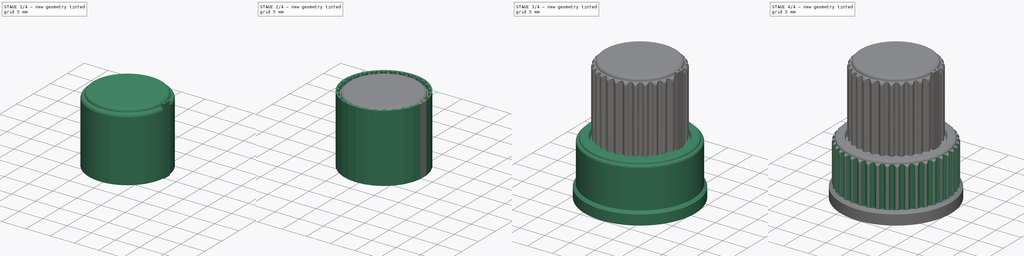
[diagram: build sequence overview — one tinted view per stage of 4, left to right]
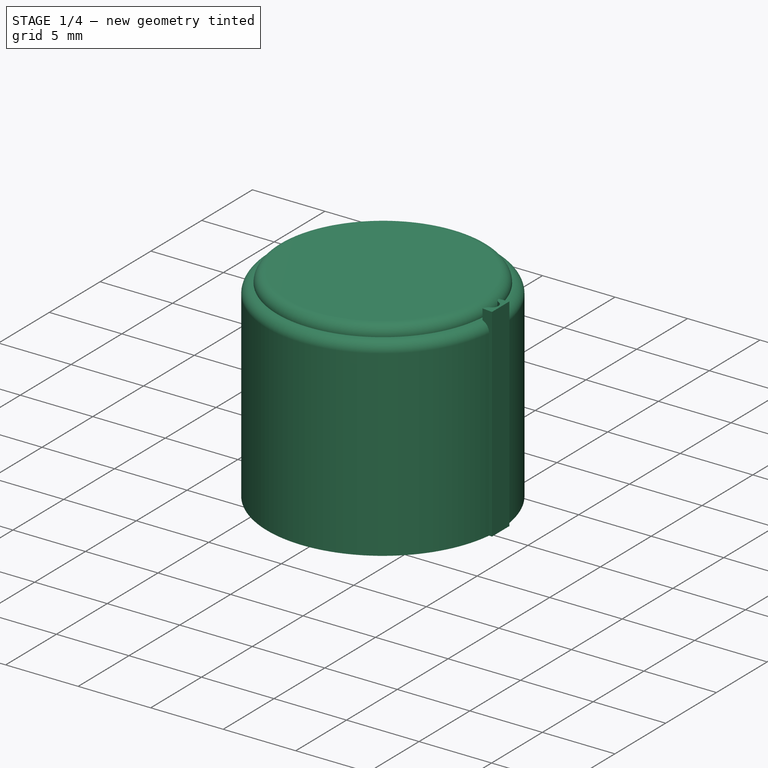
[diagram: stage 1 of 4 — iso view after this stage's code; geometry added in this stage tinted green]
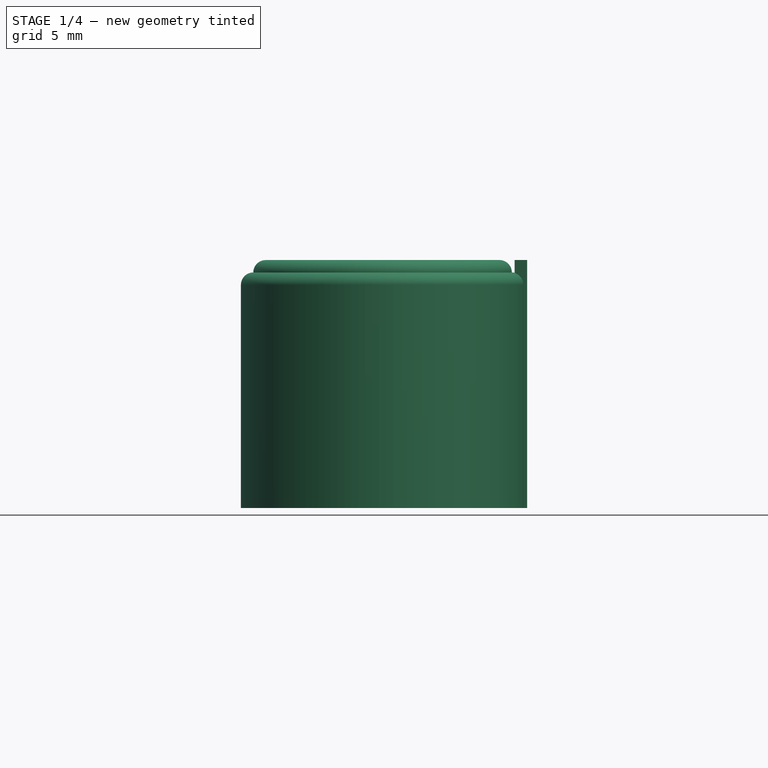
[diagram: stage 1 of 4 — front view after this stage's code; geometry added in this stage tinted green]
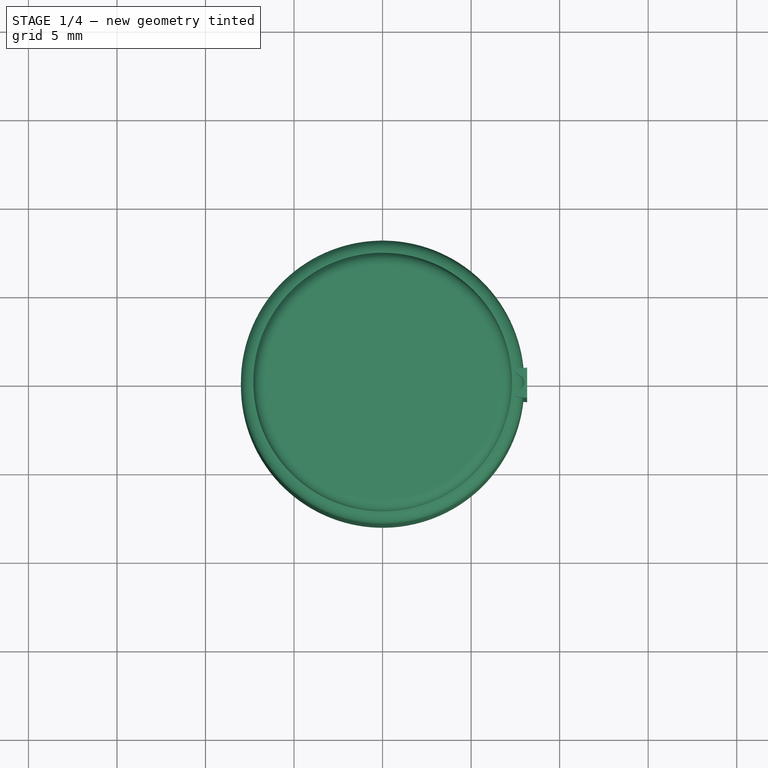
[diagram: stage 1 of 4 — top view after this stage's code; geometry added in this stage tinted green]
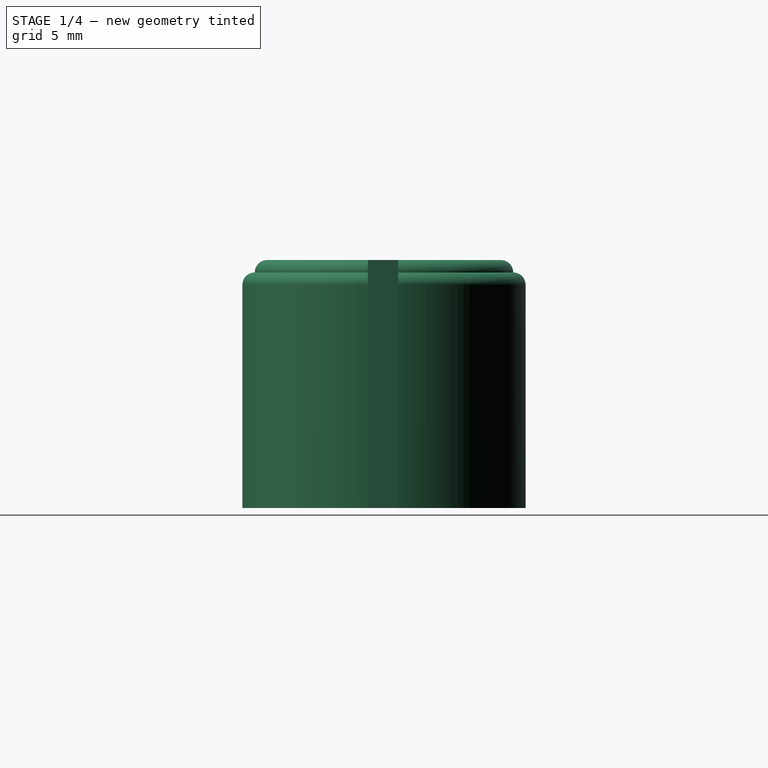
[diagram: stage 1 of 4 — right view after this stage's code; geometry added in this stage tinted green]
FCSTD DOCUMENT  (FreeCAD 0.16R6706 (Git))
Label: knob
License: All rights reserved
LicenseURL: http://en.wikipedia.org/wiki/All_rights_reserved
objects: Sketcher::SketchObject×7, PartDesign::Pad×5, PartDesign::Revolution×2, Part::FeaturePython×2, Part::MultiFuse×2, Part::Cut×2
note: 27 computed .brp shape members not serialized (recipe doc carries the construction recipe); baked Part::Feature solids carry a one-line shape summary decoded from their .brp

FEATURE [Sketcher::SketchObject] Sketch001  label="Sketch (inner)"
  Placement = pos=(0,0,0) rot=(1,0,0;1.5708rad)
  expr: Constraints[13] = 3.95 / 2
  sketch-geometry (12):
    g0: LineSegment StartX=1.975 StartY=11 StartZ=0 EndX=8 EndY=11 EndZ=0
    g1: LineSegment StartX=8 StartY=11 StartZ=0 EndX=8 EndY=23.6 EndZ=0
    g2: LineSegment StartX=6.6 StartY=25 StartZ=0 EndX=0 EndY=25 EndZ=0
    g3: LineSegment StartX=0 StartY=25 StartZ=0 EndX=0 EndY=16.5 EndZ=0
    g4: LineSegment StartX=0 StartY=16.5 StartZ=0 EndX=1.975 EndY=16.5 EndZ=0
    g5: LineSegment StartX=1.975 StartY=16.5 StartZ=0 EndX=1.975 EndY=11 EndZ=0
    g6: ArcOfCircle CenterX=6.6 CenterY=24.3 CenterZ=0 NormalX=0 NormalY=0 NormalZ=1 Radius=0.7 StartAngle=0 EndAngle=1.5708
    g7: LineSegment [constr] StartX=7.3 StartY=24.3 StartZ=0 EndX=6.6 EndY=24.3 EndZ=0
    g8: LineSegment [constr] StartX=6.6 StartY=25 StartZ=0 EndX=6.6 EndY=24.3 EndZ=0
    g9: ArcOfCircle CenterX=7.3 CenterY=23.6 CenterZ=0 NormalX=0 NormalY=0 NormalZ=1 Radius=0.7 StartAngle=0 EndAngle=1.5708
    g10: LineSegment [constr] StartX=7.3 StartY=24.3 StartZ=0 EndX=7.3 EndY=23.6 EndZ=0
    g11: LineSegment [constr] StartX=7.3 StartY=23.6 StartZ=0 EndX=8.00035 EndY=23.6 EndZ=0
  constraints (33):
    c: Horizontal(g0)
    c: Coincident(g1,g0)
    c: Horizontal(g2)
    c: Coincident(g3,g2)
    c: Vertical(g3)
    c: Coincident(g4,g3)
    c: Coincident(g5,g4)
    c: Coincident(g5,g0)
    c: Horizontal(g4)
    c: Vertical(g5)
    c: DistanceY(g-1,g0) = 11
    c: PointOnObject(g3,g-2)
    c: DistanceX(g-1,g0) = 8
    c: DistanceX(g-1,g0) = 1.975
    c: DistanceY(g5,g5) = 5.5
    c: Vertical(g1)
    c: DistanceY(g0,g2) = 14
    c: Coincident(g6,g2)
    c: Coincident(g7,g6)
    c: Coincident(g7,g6)
    c: Coincident(g8,g2)
    c: Coincident(g8,g6)
    c: Vertical(g8)
    c: Tangent(g1,g9) = -1.5708
    c: Coincident(g9,g6)
    c: Equal(g6,g9)
    c: Horizontal(g7)
    c: Coincident(g10,g6)
    c: Coincident(g10,g9)
    c: Vertical(g10)
    c: Coincident(g11,g9)
    c: Horizontal(g11)
    c: Radius(g9) = 0.7
FEATURE [PartDesign::Revolution] Revolution001  label="Revolution (inner)"
  Angle = 360
  Axis = (0,0,1)
  Base = (0,0,0)
  Placement = pos=(0,0,0) rot=(1,0,0;1.5708rad)
  ReferenceAxis = -> Sketch001 [V_Axis]
  Reversed = true
  Sketch = -> Sketch001
FEATURE [Sketcher::SketchObject] Sketch005  label="Sketch (inner notch)"
  Placement = pos=(0,0,0) rot=(1,0,0;1.5708rad)
  sketch-geometry (4):
    g0: LineSegment StartX=0.9 StartY=16.5 StartZ=0 EndX=2.9 EndY=16.5 EndZ=0
    g1: LineSegment StartX=2.9 StartY=16.5 StartZ=0 EndX=2.9 EndY=11 EndZ=0
    g2: LineSegment StartX=2.9 StartY=11 StartZ=0 EndX=0.9 EndY=11 EndZ=0
    g3: LineSegment StartX=0.9 StartY=11 StartZ=0 EndX=0.9 EndY=16.5 EndZ=0
  constraints (12):
    c: Coincident(g0,g1)
    c: Coincident(g1,g2)
    c: Coincident(g2,g3)
    c: Coincident(g3,g0)
    c: Horizontal(g0)
    c: Horizontal(g2)
    c: Vertical(g1)
    c: Vertical(g3)
    c: DistanceY(g1,g1) = 5.5
    c: DistanceX(g-1,g2) = 0.9
    c: DistanceX(g0,g0) = 2
    c: DistanceY(g-1,g1) = 11
FEATURE [PartDesign::Pad] Pad003  label="Pad (inner notch)"
  Length = 2
  Length2 = 2
  Placement = pos=(0,0,0) rot=(1,0,0;1.5708rad)
  Sketch = -> Sketch005
  Type = 4
FEATURE [Sketcher::SketchObject] Sketch006  label="Sketch (inner grip)001"
  Placement = pos=(0,0,11) rot=(0,0,1;0rad)
  sketch-geometry (9):
    g0: ArcOfCircle CenterX=7.54962 CenterY=-0.0472861 CenterZ=0 NormalX=0 NormalY=0 NormalZ=1 Radius=0.452857 StartAngle=5.11433 EndAngle=7.43952
    g1: ArcOfCircle CenterX=7.91434 CenterY=0.781746 CenterZ=0 NormalX=0 NormalY=0 NormalZ=1 Radius=0.452857 StartAngle=3.24005 EndAngle=4.29794
    g2: ArcOfCircle CenterX=7.90393 CenterY=-0.880822 CenterZ=0 NormalX=0 NormalY=0 NormalZ=1 Radius=0.452857 StartAngle=1.97272 EndAngle=3.03061
    g3: LineSegment [constr] StartX=7.91434 StartY=0.781746 StartZ=0 EndX=0 EndY=0 EndZ=0
    g4: LineSegment [constr] StartX=0 StartY=0 StartZ=0 EndX=7.90393 EndY=-0.880822 EndZ=0
    g5: GeomPoint [constr] X=8 Y=0 Z=0
    g6: LineSegment StartX=7.46368 StartY=0.737231 StartZ=0 EndX=8.16029 EndY=0.806039 EndZ=0
    g7: LineSegment StartX=8.16029 StartY=0.806039 StartZ=0 EndX=8.16029 EndY=-0.90939 EndZ=0
    g8: LineSegment StartX=8.16029 StartY=-0.90939 StartZ=0 EndX=7.45386 EndY=-0.830665 EndZ=0
  constraints (26):
    c: Coincident(g1,g0)
    c: Coincident(g2,g0)
    c: Coincident(g3,g1)
    c: Coincident(g3,g-1)
    c: Coincident(g4,g-1)
    c: Coincident(g4,g2)
    c: Equal(g1,g0)
    c: Equal(g0,g2)
    c: PointOnObject(g1,g3)
    c: PointOnObject(g2,g4)
    c: PointOnObject(g5,g0)
    c: PointOnObject(g5,g-1)
    c: Coincident(g6,g1)
    c: Coincident(g7,g6)
    c: Vertical(g7)
    c: Coincident(g8,g7)
    c: Coincident(g8,g2)
    c: Parallel(g4,g8)
    c: Parallel(g6,g3)
    c: Distance(g6) = 0.7
    c: Tangent(g0,g1)
    c: Tangent(g0,g2)
    c: Angle(g4,g3) = 0.20944
    c: DistanceX(g-1,g5) = 8
    c: Distance(g-1,g1) = 7.5
    c: Distance(g-1,g2) = 7.5
FEATURE [PartDesign::Pad] Pad004  label="Pad (inner grip)001"
  Length = 14
  Length2 = 100
  Placement = pos=(0,0,11) rot=(0,0,1;0rad)
  Sketch = -> Sketch006
  Type = 0
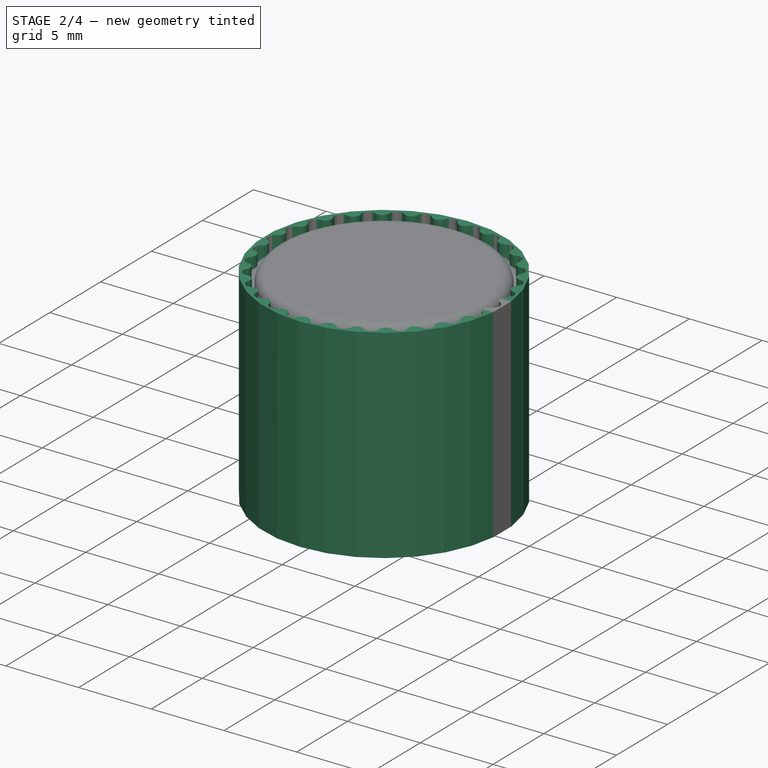
[diagram: stage 2 of 4 — iso view after this stage's code; geometry added in this stage tinted green]
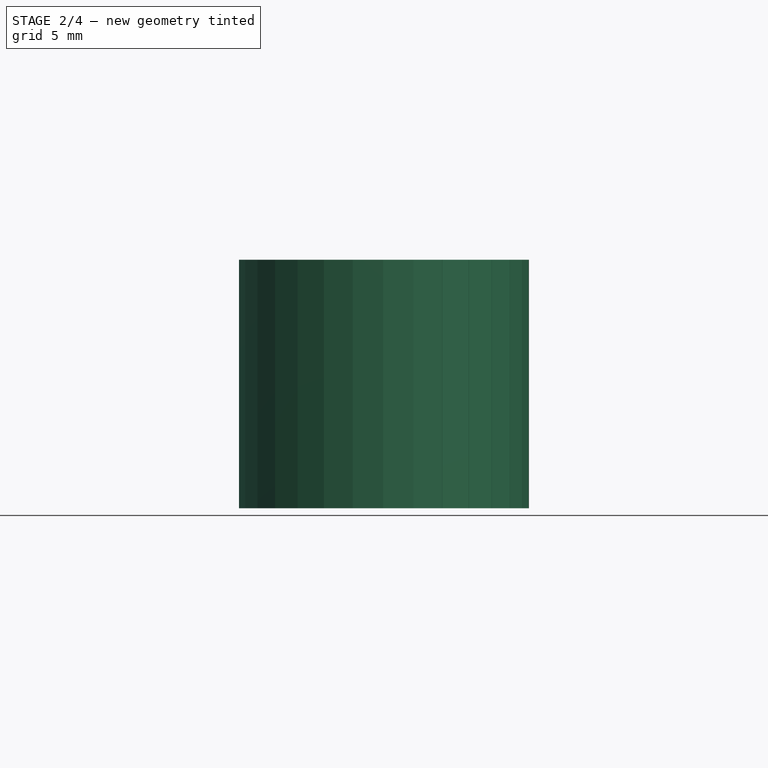
[diagram: stage 2 of 4 — front view after this stage's code; geometry added in this stage tinted green]
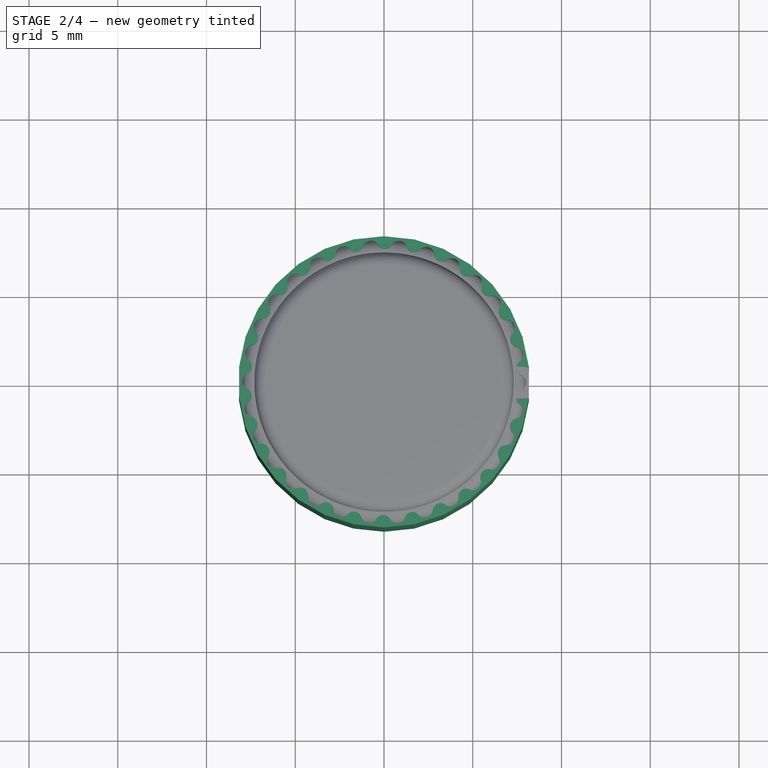
[diagram: stage 2 of 4 — top view after this stage's code; geometry added in this stage tinted green]
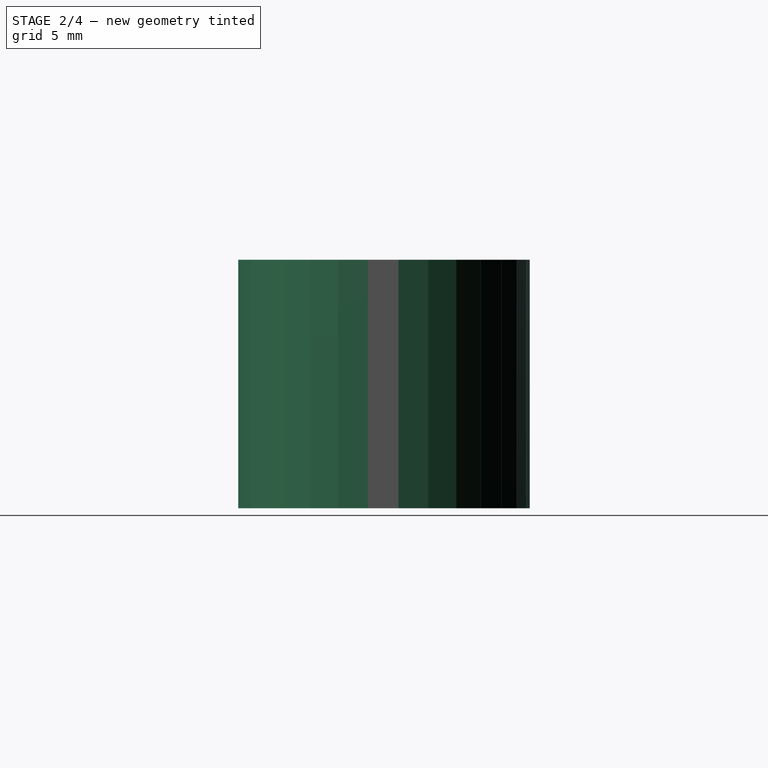
[diagram: stage 2 of 4 — right view after this stage's code; geometry added in this stage tinted green]
FEATURE [Sketcher::SketchObject] Sketch003  label="Sketch (inner grip)"
  Placement = pos=(0,0,11) rot=(0,0,1;0rad)
  sketch-geometry (9):
    g0: ArcOfCircle CenterX=7.54962 CenterY=-0.0472861 CenterZ=0 NormalX=0 NormalY=0 NormalZ=1 Radius=0.452857 StartAngle=5.11433 EndAngle=7.43952
    g1: ArcOfCircle CenterX=7.91434 CenterY=0.781746 CenterZ=0 NormalX=0 NormalY=0 NormalZ=1 Radius=0.452857 StartAngle=3.24005 EndAngle=4.29794
    g2: ArcOfCircle CenterX=7.90393 CenterY=-0.880822 CenterZ=0 NormalX=0 NormalY=0 NormalZ=1 Radius=0.452857 StartAngle=1.97272 EndAngle=3.03061
    g3: LineSegment [constr] StartX=7.91434 StartY=0.781746 StartZ=0 EndX=0 EndY=0 EndZ=0
    g4: LineSegment [constr] StartX=0 StartY=0 StartZ=0 EndX=7.90393 EndY=-0.880822 EndZ=0
    g5: GeomPoint [constr] X=8 Y=0 Z=0
    g6: LineSegment StartX=7.46368 StartY=0.737231 StartZ=0 EndX=8.16029 EndY=0.806039 EndZ=0
    g7: LineSegment StartX=8.16029 StartY=0.806039 StartZ=0 EndX=8.16029 EndY=-0.90939 EndZ=0
    g8: LineSegment StartX=8.16029 StartY=-0.90939 StartZ=0 EndX=7.45386 EndY=-0.830665 EndZ=0
  constraints (26):
    c: Coincident(g1,g0)
    c: Coincident(g2,g0)
    c: Coincident(g3,g1)
    c: Coincident(g3,g-1)
    c: Coincident(g4,g-1)
    c: Coincident(g4,g2)
    c: Equal(g1,g0)
    c: Equal(g0,g2)
    c: PointOnObject(g1,g3)
    c: PointOnObject(g2,g4)
    c: PointOnObject(g5,g0)
    c: PointOnObject(g5,g-1)
    c: Coincident(g6,g1)
    c: Coincident(g7,g6)
    c: Vertical(g7)
    c: Coincident(g8,g7)
    c: Coincident(g8,g2)
    c: Parallel(g4,g8)
    c: Parallel(g6,g3)
    c: Distance(g6) = 0.7
    c: Tangent(g0,g1)
    c: Tangent(g0,g2)
    c: Angle(g4,g3) = 0.20944
    c: DistanceX(g-1,g5) = 8
    c: Distance(g-1,g1) = 7.5
    c: Distance(g-1,g2) = 7.5
FEATURE [PartDesign::Pad] Pad001  label="Pad (inner grip)"
  Length = 14
  Length2 = 100
  Placement = pos=(0,0,11) rot=(0,0,1;0rad)
  Sketch = -> Sketch003
  Type = 0
FEATURE [Part::FeaturePython] Array001  label="Array (inner grip)"  # Draft array (typed FeaturePython)
  Angle = 360
  ArrayType = 1
  Axis = (0,0,1)
  Base = -> Pad001
  Center = (0,0,0)
  Fuse = true
  IntervalAxis = (0,0,0)
  IntervalX = (1,0,0)
  IntervalY = (0,1,0)
  IntervalZ = (0,0,0)
  NumberPolar = 30
  NumberX = 2
  NumberY = 2
  NumberZ = 1
FEATURE [Part::MultiFuse] Fusion001  label="Fusion (inner)"
  Shapes = -> [Revolution001,Pad003]
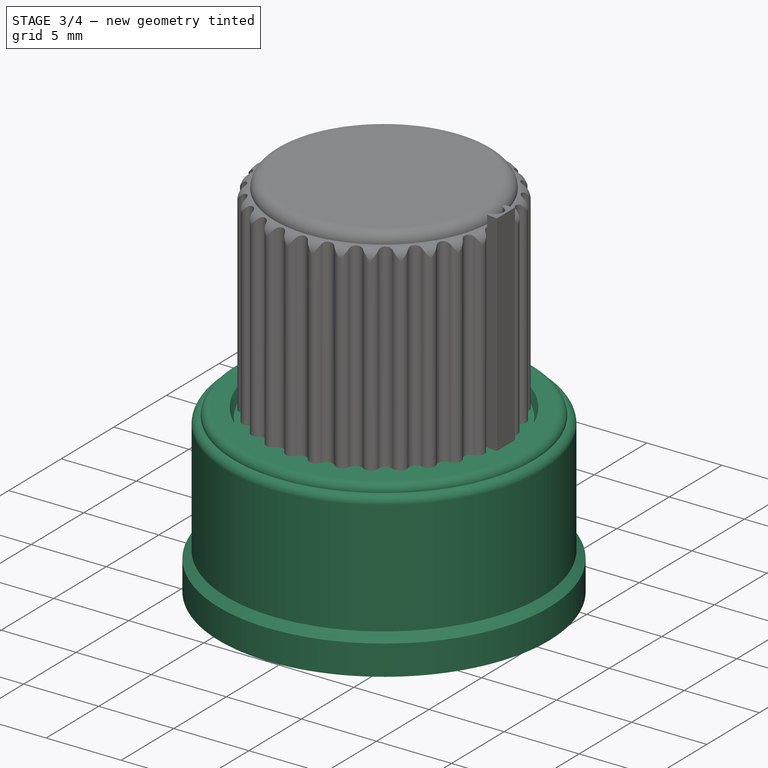
[diagram: stage 3 of 4 — iso view after this stage's code; geometry added in this stage tinted green]
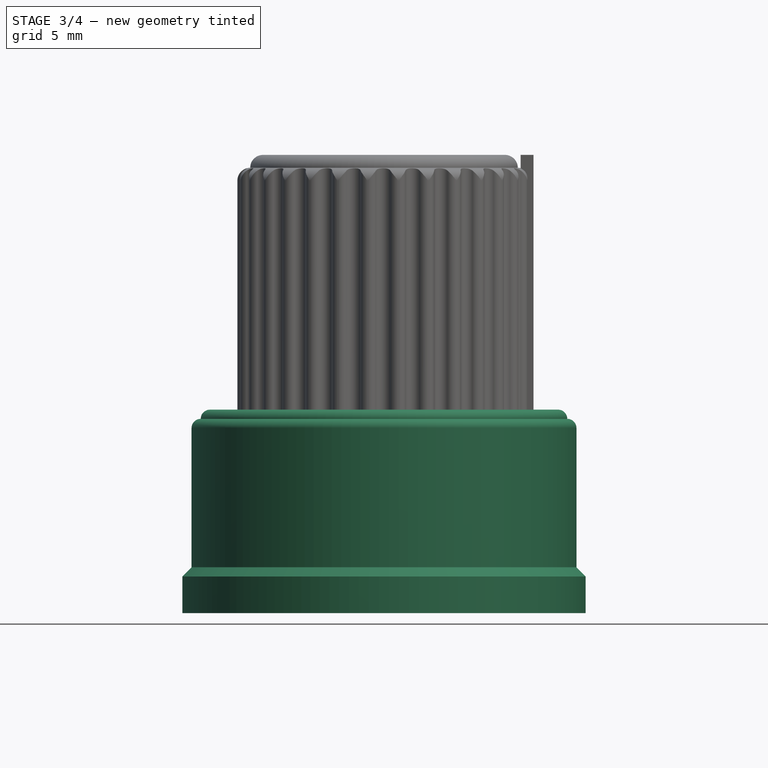
[diagram: stage 3 of 4 — front view after this stage's code; geometry added in this stage tinted green]
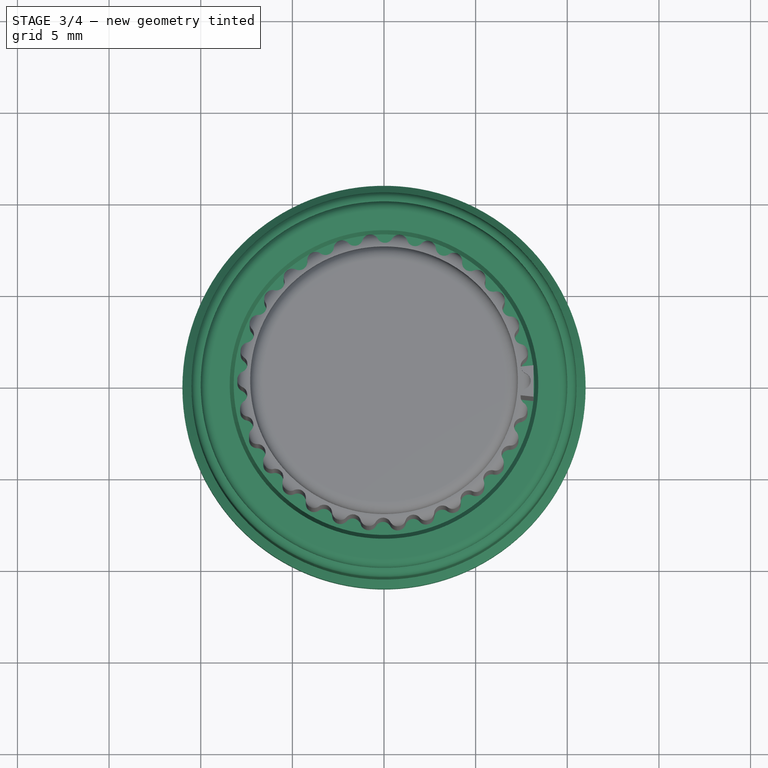
[diagram: stage 3 of 4 — top view after this stage's code; geometry added in this stage tinted green]
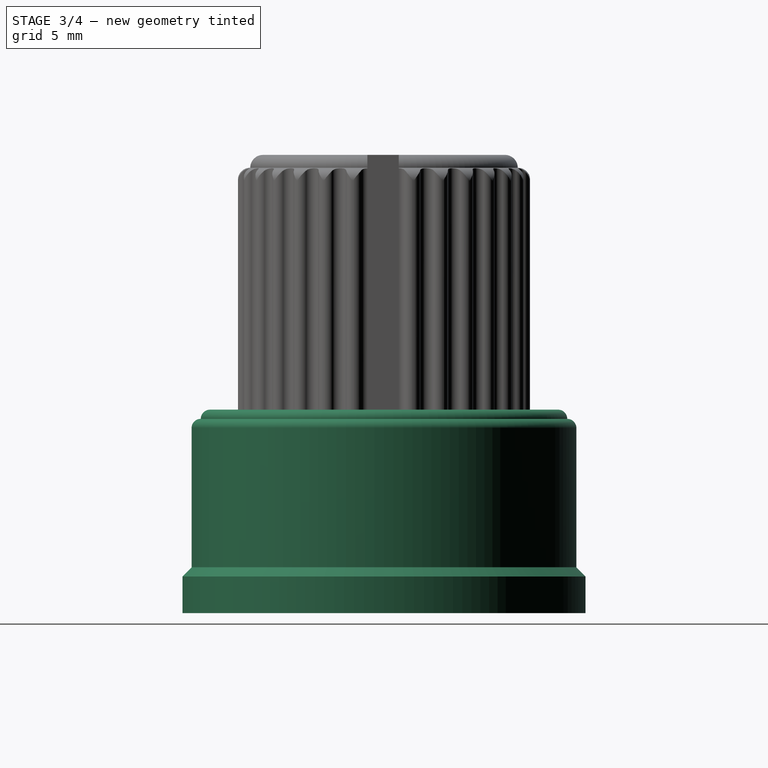
[diagram: stage 3 of 4 — right view after this stage's code; geometry added in this stage tinted green]
FEATURE [Sketcher::SketchObject] Sketch  label="Sketch (outer)"
  Placement = pos=(0,0,0) rot=(1,0,0;1.5708rad)
  sketch-geometry (18):
    g0: LineSegment StartX=2.7 StartY=0 StartZ=0 EndX=2.7 EndY=7 EndZ=0
    g1: LineSegment StartX=2.7 StartY=0 StartZ=0 EndX=11 EndY=0 EndZ=0
    g2: LineSegment StartX=11 StartY=0 StartZ=0 EndX=11 EndY=2 EndZ=0
    g3: LineSegment StartX=2.7 StartY=7 StartZ=0 EndX=2 EndY=7 EndZ=0
    g4: LineSegment StartX=11 StartY=2 StartZ=0 EndX=10.5 EndY=2.5 EndZ=0
    g5: LineSegment StartX=10.5 StartY=2.5 StartZ=0 EndX=10.5 EndY=10.1 EndZ=0
    g6: LineSegment StartX=8.41838 StartY=11.1 StartZ=0 EndX=8.2 EndY=10.5 EndZ=0
    g7: LineSegment StartX=8.2 StartY=10.5 StartZ=0 EndX=2 EndY=10.5 EndZ=0
    g8: LineSegment StartX=2 StartY=7 StartZ=0 EndX=2 EndY=10.5 EndZ=0
    g9: ArcOfCircle CenterX=10 CenterY=10.1 CenterZ=0 NormalX=0 NormalY=0 NormalZ=1 Radius=0.5 StartAngle=0 EndAngle=1.5708
    g10: ArcOfCircle CenterX=9.5 CenterY=10.6 CenterZ=0 NormalX=0 NormalY=0 NormalZ=1 Radius=0.5 StartAngle=0 EndAngle=1.5708
    g11: GeomPoint [constr] X=10.5 Y=10.1 Z=0
    g12: GeomPoint [constr] X=10 Y=10.1 Z=0
    g13: LineSegment [constr] StartX=10.5 StartY=10.1 StartZ=0 EndX=10 EndY=10.1 EndZ=0
    g14: LineSegment [constr] StartX=10 StartY=10.1 StartZ=0 EndX=10 EndY=10.6 EndZ=0
    g15: LineSegment [constr] StartX=10 StartY=10.6 StartZ=0 EndX=9.5 EndY=10.6 EndZ=0
    g16: LineSegment [constr] StartX=9.5 StartY=10.6 StartZ=0 EndX=9.5 EndY=11.1 EndZ=0
    g17: LineSegment StartX=8.41838 StartY=11.1 StartZ=0 EndX=9.5 EndY=11.1 EndZ=0
  constraints (48):
    c: PointOnObject(g0,g-1)
    c: Vertical(g0)
    c: Coincident(g1,g0)
    c: Horizontal(g1)
    c: Coincident(g2,g1)
    c: Vertical(g2)
    c: DistanceX(g-1,g1) = 11
    c: DistanceX(g-1,g0) = 2.7
    c: Coincident(g3,g0)
    c: Horizontal(g3)
    c: Coincident(g4,g2)
    c: Coincident(g5,g4)
    c: Vertical(g5)
    c: Coincident(g7,g6)
    c: Horizontal(g7)
    c: Coincident(g8,g3)
    c: Coincident(g8,g7)
    c: Vertical(g8)
    c: DistanceY(g0,g0) = 7
    c: DistanceY(g2,g2) = 2
    c: DistanceX(g4,g2) = 0.5
    c: Angle(g4) = 2.35619
    c: DistanceY(g6,g6) = 0.6
    c: Angle(g6) = -1.91986
    c: DistanceX(g-1,g6) = 8.2
    c: DistanceX(g-1,g7) = 2
    c: DistanceY(g-1,g7) = 10.5
    c: Coincident(g9,g5)
    c: Coincident(g10,g9)
    c: Coincident(g11,g5)
    c: Coincident(g13,g5)
    c: Coincident(g13,g9)
    c: Coincident(g14,g12)
    c: Coincident(g14,g9)
    c: Coincident(g15,g9)
    c: Coincident(g10,g15)
    c: Coincident(g16,g10)
    c: Coincident(g16,g10)
    c: Horizontal(g15)
    c: Vertical(g16)
    c: Horizontal(g13)
    c: Vertical(g14)
    c: Coincident(g9,g12)
    c: Equal(g9,g10)
    c: Radius(g10) = 0.5
    c: Coincident(g17,g6)
    c: Coincident(g17,g10)
    c: Horizontal(g17)
FEATURE [PartDesign::Revolution] Revolution  label="Revolution (outer)"
  Angle = 360
  Axis = (0,0,1)
  Base = (0,0,0)
  Placement = pos=(0,0,0) rot=(1,0,0;1.5708rad)
  ReferenceAxis = -> Sketch [V_Axis]
  Reversed = true
  Sketch = -> Sketch
FEATURE [Sketcher::SketchObject] Sketch004  label="Sketch (outer notch)"
  Placement = pos=(0,0,0) rot=(1,0,0;1.5708rad)
  sketch-geometry (10):
    g0: LineSegment StartX=2.7 StartY=3.4 StartZ=0 EndX=2.7 EndY=7 EndZ=0
    g1: LineSegment StartX=2.7 StartY=3.4 StartZ=0 EndX=1.875 EndY=4.225 EndZ=0
    g2: LineSegment StartX=1.875 StartY=4.225 StartZ=0 EndX=1.875 EndY=7 EndZ=0
    g3: LineSegment StartX=2.7 StartY=7 StartZ=0 EndX=1.875 EndY=7 EndZ=0
    g4: LineSegment StartX=-2.7 StartY=3.4 StartZ=0 EndX=-2.7 EndY=7 EndZ=0
    g5: LineSegment StartX=-1.875 StartY=4.225 StartZ=0 EndX=-1.875 EndY=7 EndZ=0
    g6: LineSegment [constr] StartX=2.7 StartY=3.4 StartZ=0 EndX=0 EndY=3.4 EndZ=0
    g7: LineSegment [constr] StartX=0 StartY=3.4 StartZ=0 EndX=-2.7 EndY=3.4 EndZ=0
    g8: LineSegment StartX=-2.7 StartY=7 StartZ=0 EndX=-1.875 EndY=7 EndZ=0
    g9: LineSegment StartX=-2.7 StartY=3.4 StartZ=0 EndX=-1.875 EndY=4.225 EndZ=0
  constraints (29):
    c: Vertical(g0)
    c: DistanceY(g-1,g0) = 7
    c: DistanceY(g0,g0) = 3.6
    c: DistanceX(g-1,g0) = 2.7
    c: Coincident(g2,g1)
    c: Vertical(g2)
    c: Coincident(g3,g0)
    c: Coincident(g3,g2)
    c: Horizontal(g3)
    c: Coincident(g0,g1)
    c: Vertical(g4)
    c: Equal(g0,g4) = 3.6
    c: Vertical(g5)
    c: Coincident(g6,g0)
    c: Horizontal(g6)
    c: Coincident(g7,g6)
    c: Coincident(g7,g4)
    c: Horizontal(g7)
    c: Equal(g7,g6)
    c: PointOnObject(g6,g-2)
    c: Coincident(g8,g4)
    c: Coincident(g8,g5)
    c: Horizontal(g8)
    c: Equal(g8,g3)
    c: Coincident(g9,g4)
    c: Coincident(g5,g9)
    c: Equal(g2,g5)
    c: Angle(g1,g6) = 0.785398
    c: DistanceX(g5,g2) = 3.75
FEATURE [PartDesign::Pad] Pad002  label="Pad (outer notch)"
  Length = 0.7
  Length2 = 0.7
  Placement = pos=(0,0,0) rot=(1,0,0;1.5708rad)
  Sketch = -> Sketch004
  Type = 4
FEATURE [Part::MultiFuse] Fusion  label="Fusion (outer)"
  Shapes = -> [Revolution,Pad002]
FEATURE [Part::Cut] Cut001  label="Cut (inner)"
  Base = -> Fusion001
  Tool = -> Array001
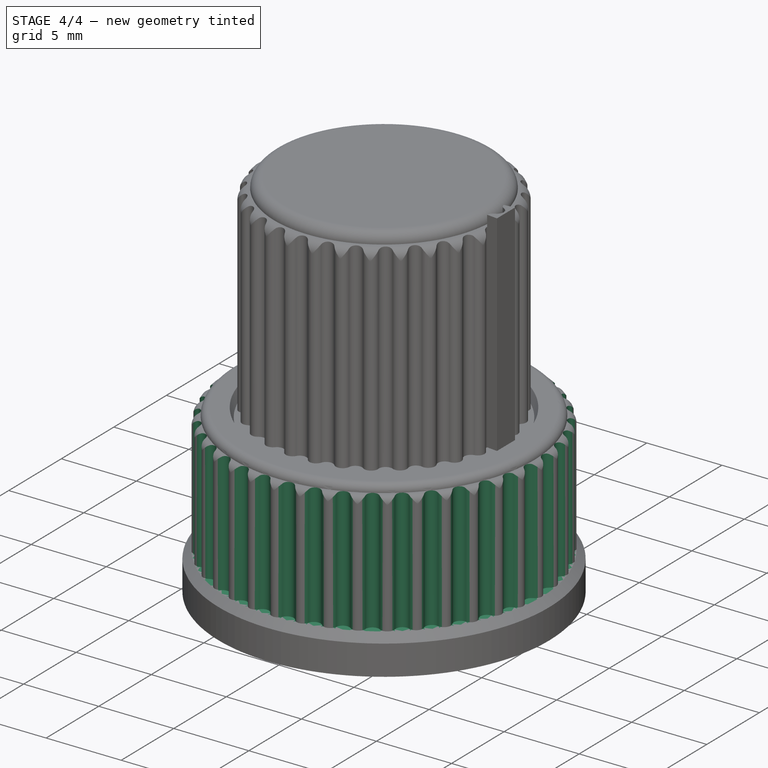
[diagram: stage 4 of 4 — iso view after this stage's code; geometry added in this stage tinted green]
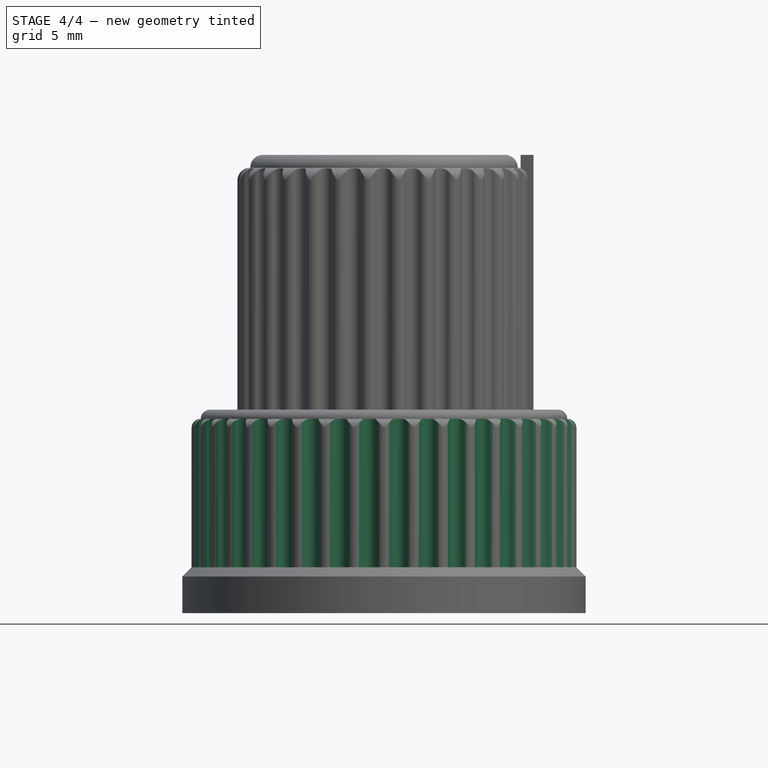
[diagram: stage 4 of 4 — front view after this stage's code; geometry added in this stage tinted green]
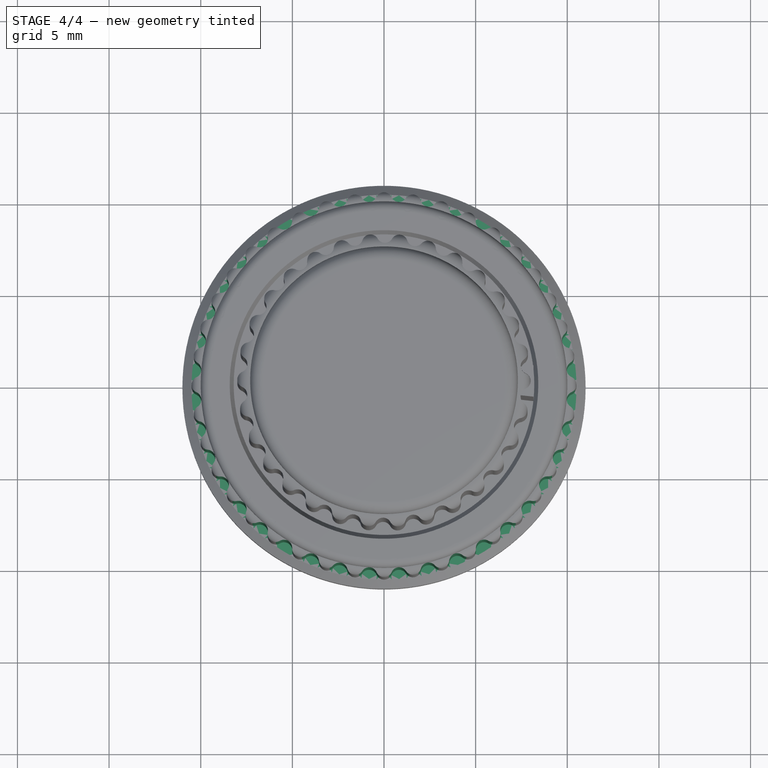
[diagram: stage 4 of 4 — top view after this stage's code; geometry added in this stage tinted green]
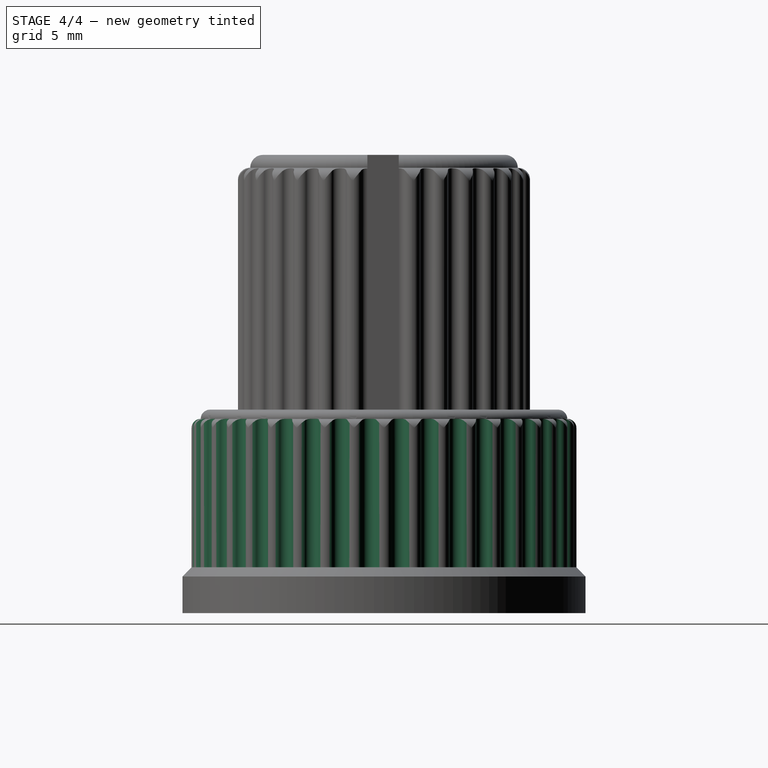
[diagram: stage 4 of 4 — right view after this stage's code; geometry added in this stage tinted green]
FEATURE [Sketcher::SketchObject] Sketch002  label="Sketch (outer grip)"
  Placement = pos=(0,0,2.5) rot=(0,0,1;0rad)
  sketch-geometry (9):
    g0: ArcOfCircle CenterX=10.0513 CenterY=0.00493983 CenterZ=0 NormalX=0 NormalY=0 NormalZ=1 Radius=0.448741 StartAngle=5.13201 EndAngle=7.43442
    g1: ArcOfCircle CenterX=10.4161 CenterY=0.824918 CenterZ=0 NormalX=0 NormalY=0 NormalZ=1 Radius=0.448741 StartAngle=3.22062 EndAngle=4.29468
    g2: ArcOfCircle CenterX=10.4169 CenterY=-0.81468 CenterZ=0 NormalX=0 NormalY=0 NormalZ=1 Radius=0.448741 StartAngle=1.99042 EndAngle=3.06354
    g3: LineSegment [constr] StartX=10.4161 StartY=0.824918 StartZ=0 EndX=0 EndY=0 EndZ=0
    g4: LineSegment [constr] StartX=0 StartY=0 StartZ=0 EndX=10.4169 EndY=-0.81468 EndZ=0
    g5: GeomPoint [constr] X=10.5 Y=0 Z=0
    g6: LineSegment StartX=9.96879 StartY=0.78949 StartZ=0 EndX=10.6666 EndY=0.844754 EndZ=0
    g7: LineSegment StartX=10.6666 StartY=0.844754 StartZ=0 EndX=10.6666 EndY=-0.834205 EndZ=0
    g8: LineSegment StartX=10.6666 StartY=-0.834205 StartZ=0 EndX=9.96956 EndY=-0.779692 EndZ=0
  constraints (25):
    c: Coincident(g1,g0)
    c: Coincident(g2,g0)
    c: Coincident(g3,g1)
    c: Coincident(g3,g-1)
    c: Coincident(g4,g-1)
    c: Coincident(g4,g2)
    c: Equal(g1,g0)
    c: Equal(g0,g2)
    c: PointOnObject(g1,g3)
    c: PointOnObject(g2,g4)
    c: PointOnObject(g5,g0)
    c: PointOnObject(g5,g-1)
    c: DistanceX(g-1,g5) = 10.5
    c: Distance(g-1,g1) = 10
    c: Coincident(g6,g1)
    c: Coincident(g7,g6)
    c: Vertical(g7)
    c: Coincident(g8,g7)
    c: Coincident(g8,g2)
    c: Parallel(g4,g8)
    c: Parallel(g6,g3)
    c: Distance(g6) = 0.7
    c: Tangent(g0,g2)
    c: Distance(g-1,g2) = 10
    c: Angle(g4,g3) = 0.15708
FEATURE [PartDesign::Pad] Pad  label="Pad (outer grip)"
  Length = 10
  Length2 = 100
  Placement = pos=(0,0,2.5) rot=(0,0,1;0rad)
  Sketch = -> Sketch002
  Type = 0
FEATURE [Part::FeaturePython] Array  label="Array (outer grip)"  # Draft array (typed FeaturePython)
  Angle = 360
  ArrayType = 1
  Axis = (0,0,1)
  Base = -> Pad
  Center = (0,0,0)
  Fuse = true
  IntervalAxis = (0,0,0)
  IntervalX = (1,0,0)
  IntervalY = (0,1,0)
  IntervalZ = (0,0,0)
  NumberPolar = 40
  NumberX = 1
  NumberY = 2
  NumberZ = 1
FEATURE [Part::Cut] Cut  label="Cut (outer)"
  Base = -> Fusion
  Tool = -> Array
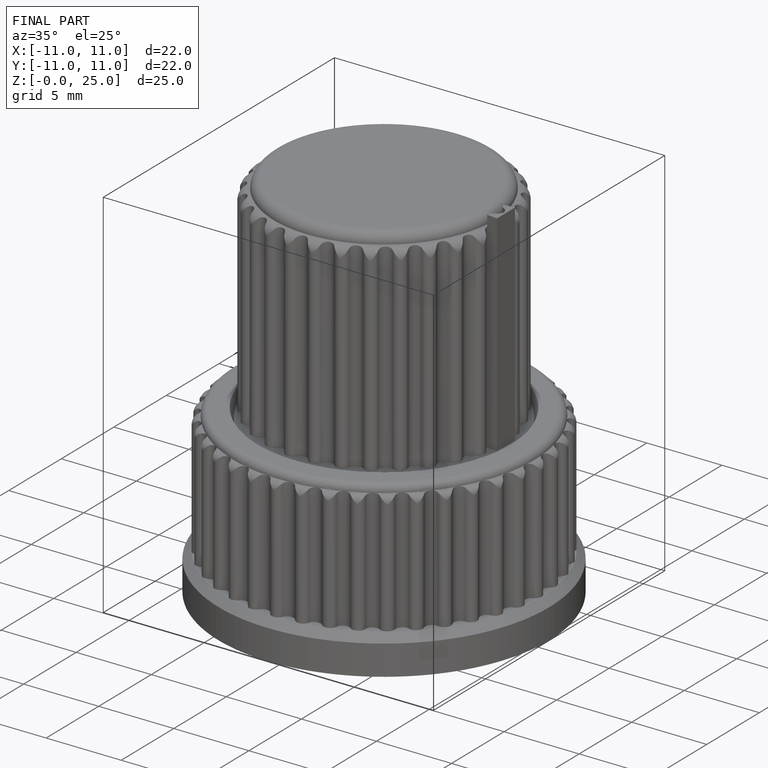
[diagram: finished part — iso view with bounding-box wireframe]
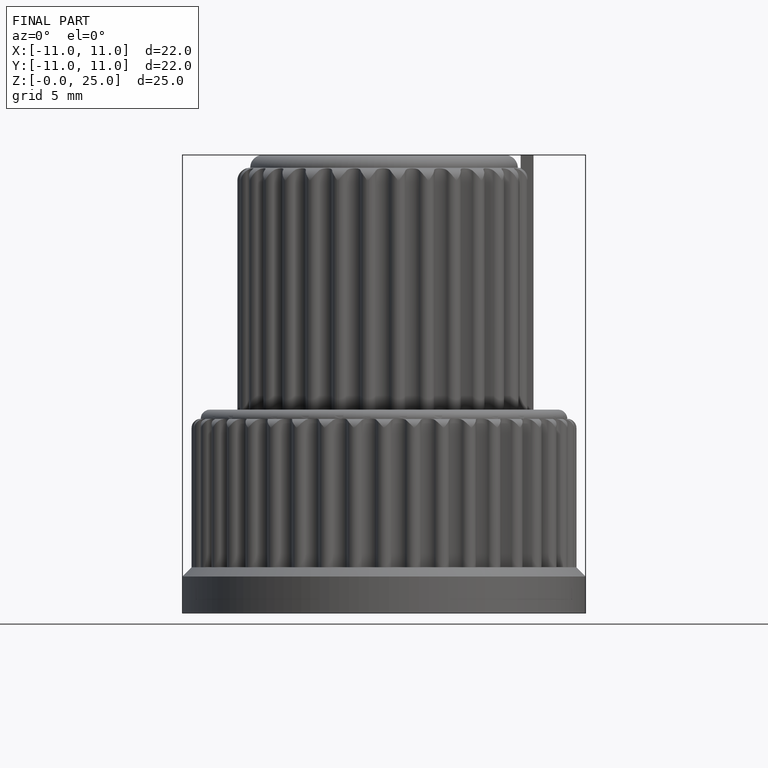
[diagram: finished part — front view with bounding-box wireframe]
